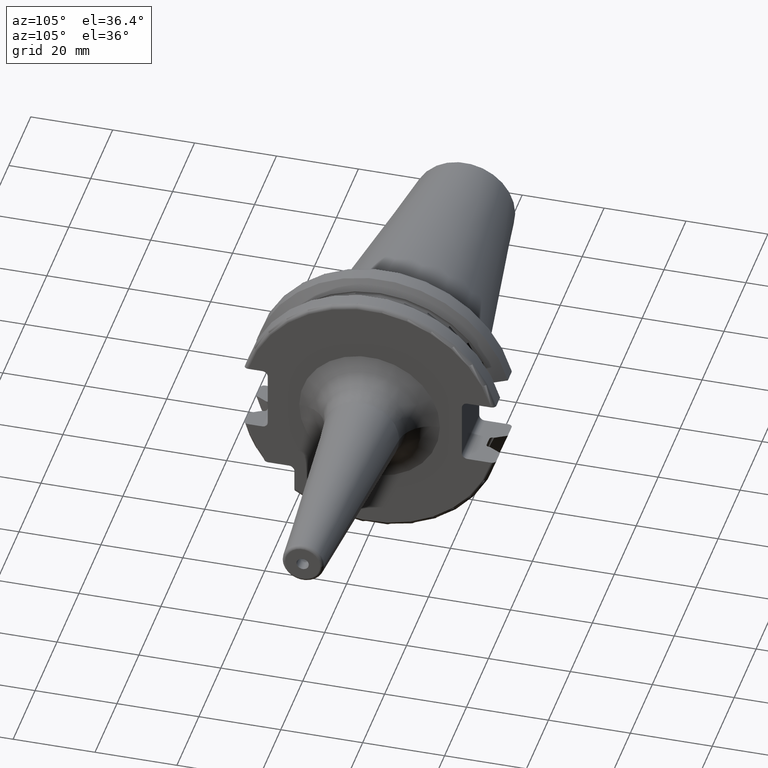
[diagram: clean part render]
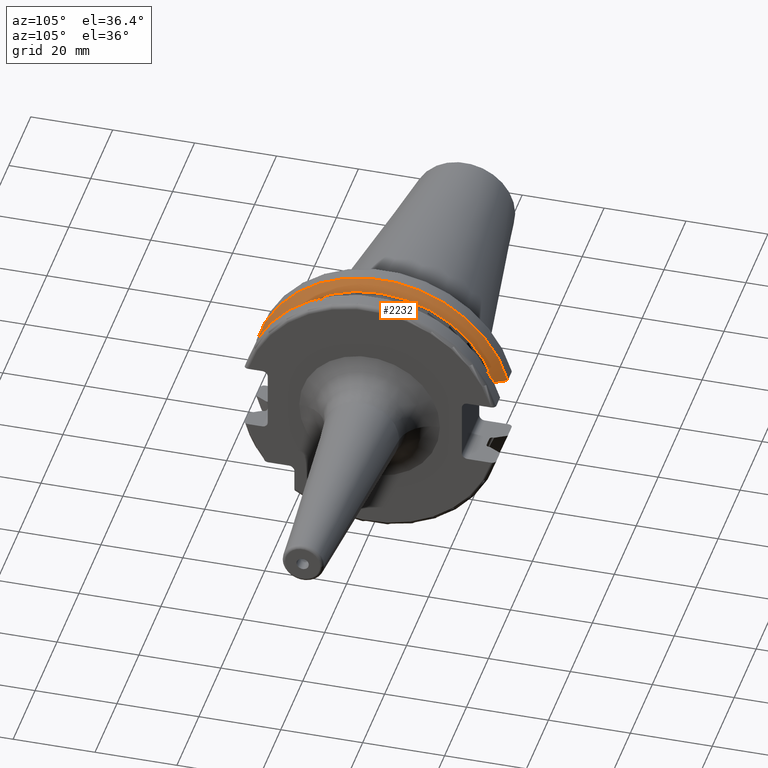
[diagram: same view with one face highlighted and labeled with its STEP entity id]
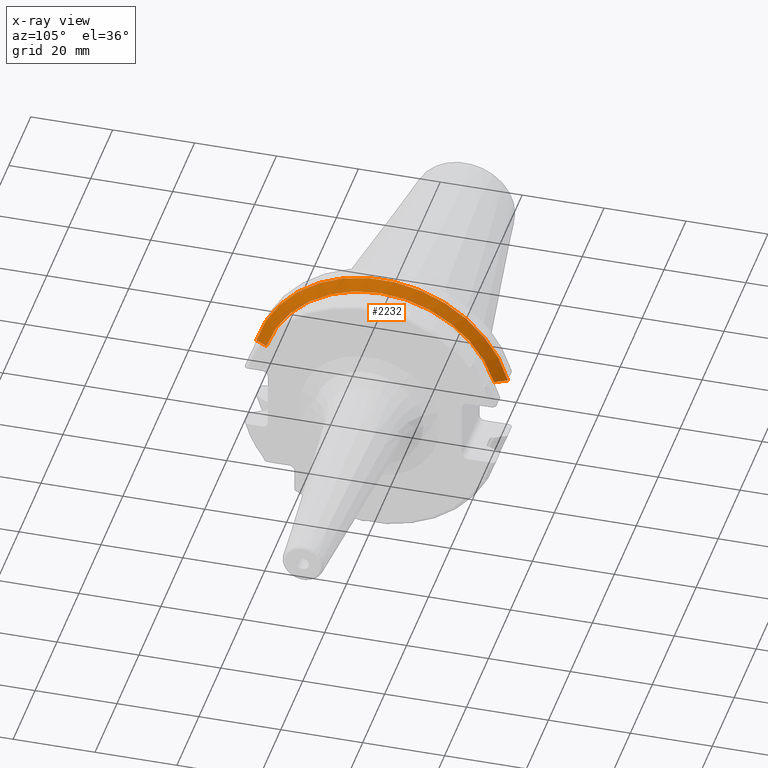
[diagram: x-ray of the same camera — body ghosted, the highlighted face saturated]
A machine part, auxiliary view. The second image highlights one B-rep face of the part: STEP entity #2232.
The next image is the same camera in x-ray: the body ghosted, the highlighted face saturated — about 0% of this face is hidden behind the body in this view.
In plain terms, the highlighted conical surface has half-angle 60 deg.
Its self-contained STEP definition (entity closure, byte-faithful):
#588=CARTESIAN_POINT('',(7.645946479578E0,0.E0,0.E0));
#589=DIRECTION('',(1.E0,0.E0,0.E0));
#590=DIRECTION('',(0.E0,9.669363825036E-1,2.550177095632E-1));
#591=AXIS2_PLACEMENT_3D('',#588,#589,#590);
#615=CARTESIAN_POINT('',(7.645946479578E0,3.071231684927E1,8.1E0));
#616=CARTESIAN_POINT('',(7.831754864835E0,3.037948258059E1,8.1E0));
#617=CARTESIAN_POINT('',(8.199252814970E0,2.972048825911E1,8.1E0));
#618=CARTESIAN_POINT('',(8.738047920141E0,2.875212438619E1,8.1E0));
#619=CARTESIAN_POINT('',(9.089058006747E0,2.811971443922E1,8.1E0));
#620=CARTESIAN_POINT('',(9.2625E0,2.780681820245E1,8.1E0));
#622=CARTESIAN_POINT('',(9.2625E0,-2.780681820245E1,8.1E0));
#623=CARTESIAN_POINT('',(9.089138247115E0,-2.811956968242E1,8.1E0));
#624=CARTESIAN_POINT('',(8.738235514848E0,-2.875178670793E1,8.1E0));
#625=CARTESIAN_POINT('',(8.199445066245E0,-2.972014324708E1,8.1E0));
#626=CARTESIAN_POINT('',(7.831837395590E0,-3.037933474515E1,8.1E0));
#627=CARTESIAN_POINT('',(7.645946479578E0,-3.071231684927E1,8.1E0));
#637=CARTESIAN_POINT('',(9.2625E0,0.E0,0.E0));
#638=DIRECTION('',(1.E0,0.E0,0.E0));
#639=DIRECTION('',(0.E0,9.600957415706E-1,2.796715341576E-1));
#640=AXIS2_PLACEMENT_3D('',#637,#638,#639);
#1318=CARTESIAN_POINT('',(9.2625E0,2.780681820245E1,8.1E0));
#1320=VERTEX_POINT('',#1318);
#1330=CARTESIAN_POINT('',(9.2625E0,-2.780681820245E1,8.1E0));
#1332=VERTEX_POINT('',#1330);
#1372=VERTEX_POINT('',#615);
#1373=VERTEX_POINT('',#627);
#2220=CARTESIAN_POINT('',(8.454223239789E0,0.E0,0.E0));
#2221=DIRECTION('',(-1.E0,0.E0,0.E0));
#2222=DIRECTION('',(0.E0,1.E0,0.E0));
#2223=AXIS2_PLACEMENT_3D('',#2220,#2221,#2222);
#2224=CONICAL_SURFACE('',#2223,3.036252358474E1,6.E1);
#2225=ORIENTED_EDGE('',*,*,#1842,.T.);
#2227=ORIENTED_EDGE('',*,*,#2226,.T.);
#2228=ORIENTED_EDGE('',*,*,#1878,.T.);
#2229=ORIENTED_EDGE('',*,*,#2200,.F.);
#2230=EDGE_LOOP('',(#2225,#2227,#2228,#2229));
#2231=FACE_OUTER_BOUND('',#2230,.F.);
#2232=ADVANCED_FACE('',(#2231),#2224,.T.);
#592=CIRCLE('',#591,3.17625E1);
#621=B_SPLINE_CURVE_WITH_KNOTS('',3,(#615,#616,#617,#618,#619,#620),
.UNSPECIFIED.,.F.,.F.,(4,1,1,4),(0.E0,3.333333333333E-1,6.666666666667E-1,1.E0),
.UNSPECIFIED.);
#628=B_SPLINE_CURVE_WITH_KNOTS('',3,(#622,#623,#624,#625,#626,#627),
.UNSPECIFIED.,.F.,.F.,(4,1,1,4),(0.E0,3.333333333333E-1,6.666666666667E-1,1.E0),
.UNSPECIFIED.);
#641=CIRCLE('',#640,2.896254716948E1);
#1842=EDGE_CURVE('',#1372,#1320,#621,.T.);
#1878=EDGE_CURVE('',#1332,#1373,#628,.T.);
#2200=EDGE_CURVE('',#1372,#1373,#592,.T.);
#2226=EDGE_CURVE('',#1320,#1332,#641,.T.);